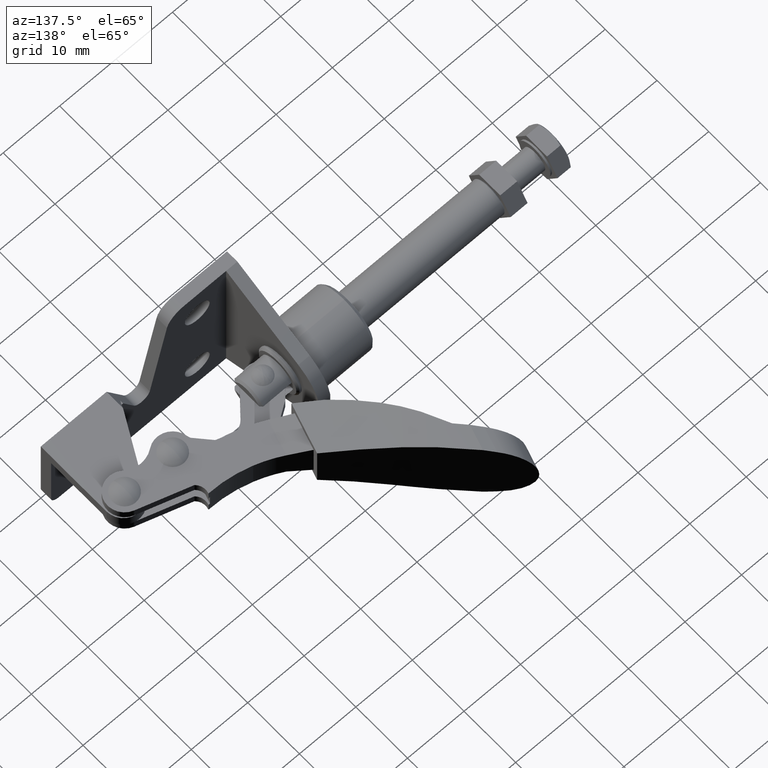
[diagram: clean part render]
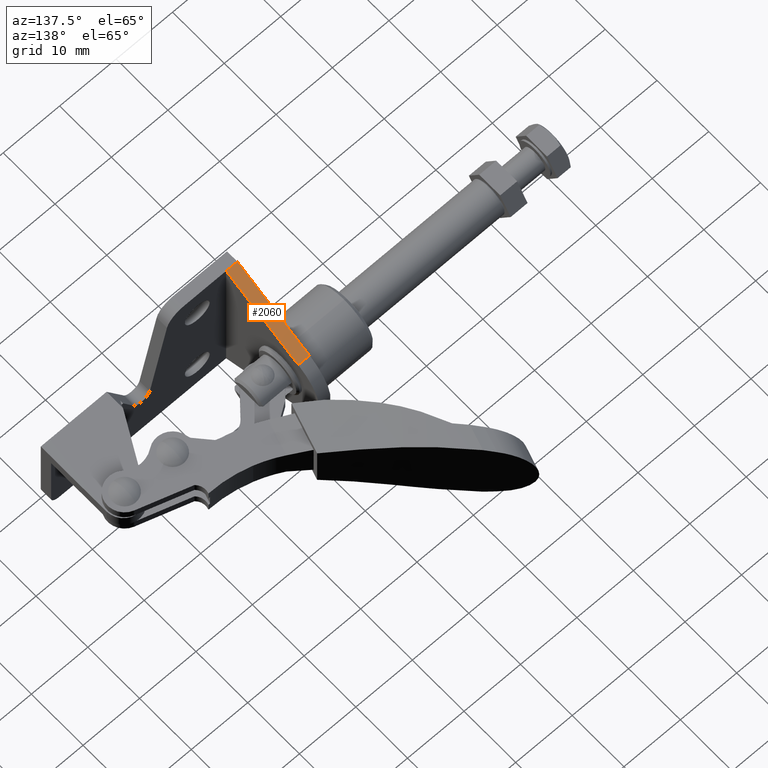
[diagram: same view with one face highlighted and labeled with its STEP entity id]
A machine part, auxiliary view. The second image highlights one B-rep face of the part: STEP entity #2060.
In plain terms, the highlighted planar face has unit normal (0, 0.4466, 0.8947).
Its self-contained STEP definition (entity closure, byte-faithful):
#53 = EDGE_LOOP ( 'NONE', ( #4558, #2383, #689, #2609 ) ) ;
#147 = DIRECTION ( 'NONE',  ( 1.000000000000000000, 0.0000000000000000000, 0.0000000000000000000 ) ) ;
#317 = CARTESIAN_POINT ( 'NONE',  ( -6.000000000000036400, 15.96029942902143800, 20.03149658448373000 ) ) ;
#481 = DIRECTION ( 'NONE',  ( -1.000000000000000000, 0.0000000000000000000, 0.0000000000000000000 ) ) ;
#532 = CARTESIAN_POINT ( 'NONE',  ( -31.00000000000003600, 15.96029942902143800, 20.03149658448373000 ) ) ;
#689 = ORIENTED_EDGE ( 'NONE', *, *, #6102, .T. ) ;
#1231 = VECTOR ( 'NONE', #1708, 1000.000000000000100 ) ;
#1297 = LINE ( 'NONE', #1574, #2417 ) ;
#1306 = EDGE_CURVE ( 'NONE', #5256, #5092, #5213, .T. ) ;
#1321 = CARTESIAN_POINT ( 'NONE',  ( -6.000000000000036400, 15.96029942902144000, 20.03149658448373700 ) ) ;
#1379 = VECTOR ( 'NONE', #481, 1000.000000000000000 ) ;
#1494 = AXIS2_PLACEMENT_3D ( 'NONE', #1321, #5635, #2765 ) ;
#1574 = CARTESIAN_POINT ( 'NONE',  ( 0.0000000000000000000, 1.999999999999760200, 27.00000000000000000 ) ) ;
#1708 = DIRECTION ( 'NONE',  ( -0.0000000000000000000, -0.8947255595183180000, 0.4466163601399223400 ) ) ;
#1798 = VERTEX_POINT ( 'NONE', #4497 ) ;
#2049 = CARTESIAN_POINT ( 'NONE',  ( -31.00000000000002800, 1.999999999999946300, 26.99999999999990800 ) ) ;
#2060 = ADVANCED_FACE ( 'NONE', ( #2112 ), #3212, .T. ) ;
#2112 = FACE_OUTER_BOUND ( 'NONE', #53, .T. ) ;
#2226 = VECTOR ( 'NONE', #4179, 1000.000000000000100 ) ;
#2377 = LINE ( 'NONE', #4672, #2226 ) ;
#2383 = ORIENTED_EDGE ( 'NONE', *, *, #3223, .F. ) ;
#2417 = VECTOR ( 'NONE', #147, 1000.000000000000000 ) ;
#2609 = ORIENTED_EDGE ( 'NONE', *, *, #5495, .F. ) ;
#2765 = DIRECTION ( 'NONE',  ( 0.0000000000000000000, 0.8947255595183180000, -0.4466163601399223400 ) ) ;
#2805 = LINE ( 'NONE', #4189, #1231 ) ;
#3212 = PLANE ( 'NONE',  #1494 ) ;
#3223 = EDGE_CURVE ( 'NONE', #1798, #5092, #2377, .T. ) ;
#4179 = DIRECTION ( 'NONE',  ( 0.0000000000000000000, 0.8947255595183180000, -0.4466163601399223400 ) ) ;
#4189 = CARTESIAN_POINT ( 'NONE',  ( -31.00000000000003600, 16.40960888339657200, 19.80721669110781500 ) ) ;
#4497 = CARTESIAN_POINT ( 'NONE',  ( -33.00000000000003600, 1.999999999999946300, 26.99999999999990800 ) ) ;
#4558 = ORIENTED_EDGE ( 'NONE', *, *, #1306, .T. ) ;
#4672 = CARTESIAN_POINT ( 'NONE',  ( -33.00000000000003600, 15.96029942902144000, 20.03149658448373700 ) ) ;
#4718 = CARTESIAN_POINT ( 'NONE',  ( -33.00000000000003600, 15.96029942902143800, 20.03149658448373000 ) ) ;
#4735 = VERTEX_POINT ( 'NONE', #2049 ) ;
#5092 = VERTEX_POINT ( 'NONE', #4718 ) ;
#5213 = LINE ( 'NONE', #317, #1379 ) ;
#5256 = VERTEX_POINT ( 'NONE', #532 ) ;
#5495 = EDGE_CURVE ( 'NONE', #5256, #4735, #2805, .T. ) ;
#5635 = DIRECTION ( 'NONE',  ( 0.0000000000000000000, 0.4466163601399223400, 0.8947255595183180000 ) ) ;
#6102 = EDGE_CURVE ( 'NONE', #1798, #4735, #1297, .T. ) ;